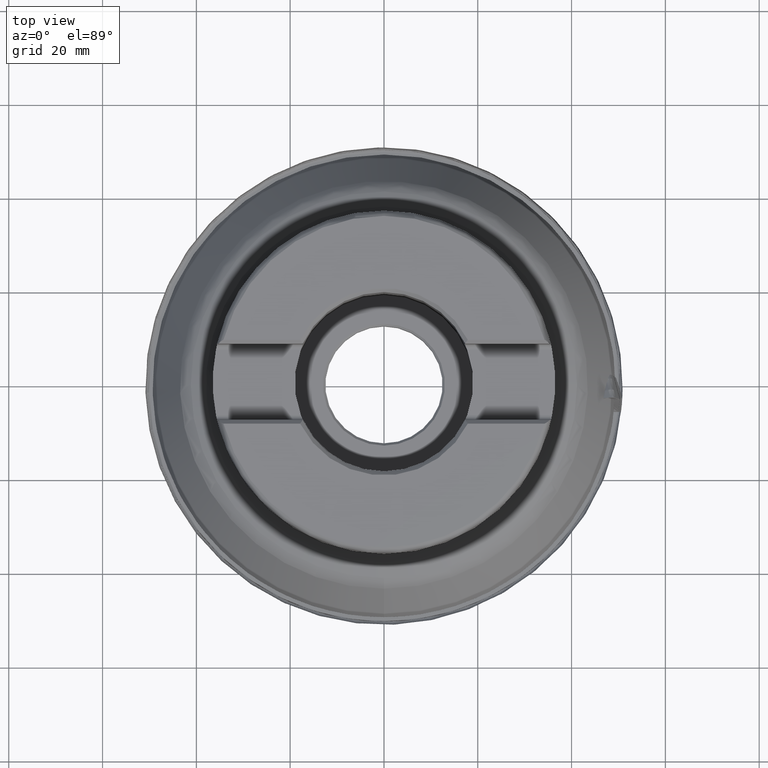
[diagram: clean part render]
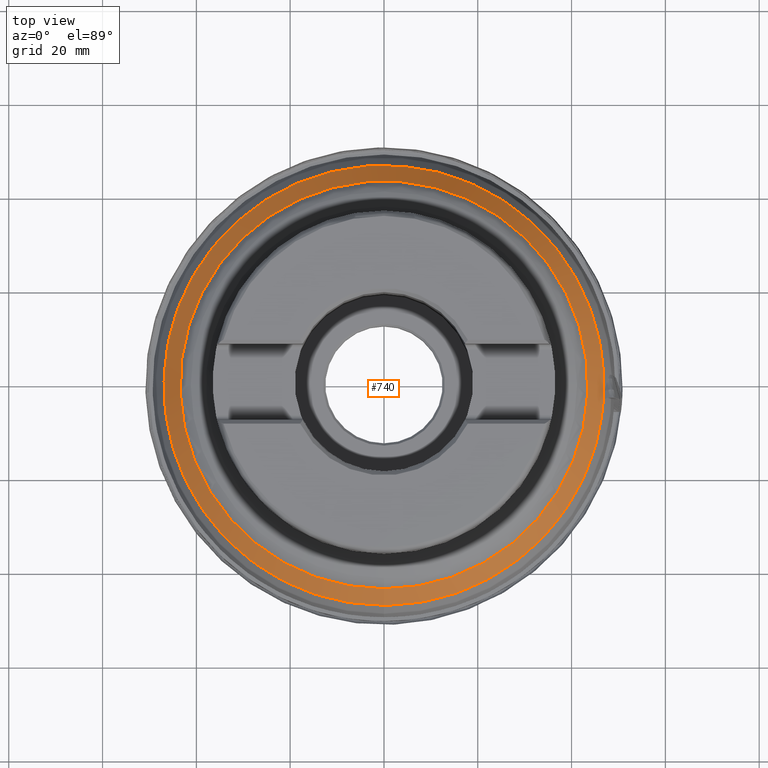
[diagram: same view with one face highlighted and labeled with its STEP entity id]
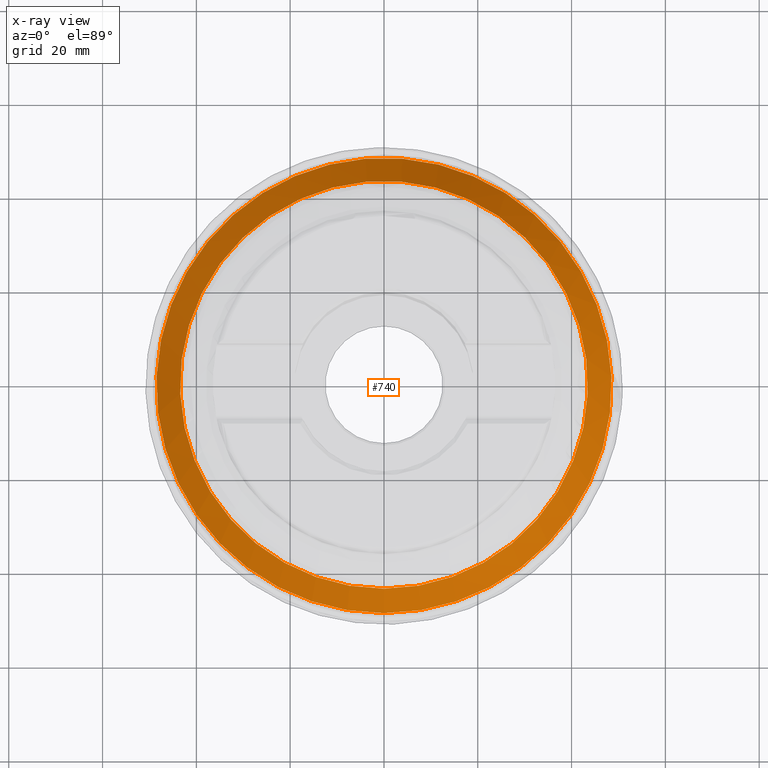
[diagram: x-ray of the same camera — body ghosted, the highlighted face saturated]
A machine part, top view. The second image highlights one B-rep face of the part: STEP entity #740.
The next image is the same camera in x-ray: the body ghosted, the highlighted face saturated — about 0% of this face is hidden behind the body in this view.
In plain terms, the highlighted conical surface has half-angle 30 deg.
Its self-contained STEP definition (entity closure, byte-faithful):
#404=CONICAL_SURFACE('',#4623,48.6608931922002,30.);
#440=FACE_BOUND('',#1329,.T.);
#441=FACE_BOUND('',#1330,.T.);
#589=CIRCLE('',#4621,43.4731924327825);
#590=CIRCLE('',#4622,48.5292406946128);
#740=ADVANCED_FACE('',(#440,#441),#404,.T.);
#1329=EDGE_LOOP('',(#1818));
#1330=EDGE_LOOP('',(#1819));
#1818=ORIENTED_EDGE('',*,*,#3509,.T.);
#1819=ORIENTED_EDGE('',*,*,#3510,.T.);
#3101=VERTEX_POINT('',#5832);
#3102=VERTEX_POINT('',#5834);
#3509=EDGE_CURVE('',#3101,#3101,#589,.T.);
#3510=EDGE_CURVE('',#3102,#3102,#590,.T.);
#4621=AXIS2_PLACEMENT_3D('',#5831,#4897,#4898);
#4622=AXIS2_PLACEMENT_3D('',#5833,#4899,#4900);
#4623=AXIS2_PLACEMENT_3D('',#5835,#4901,#4902);
#4897=DIRECTION('',(0.,-1.17145536458252E-15,-1.));
#4898=DIRECTION('',(0.,-1.,1.19709874906864E-15));
#4899=DIRECTION('',(0.,1.17145536458252E-15,1.));
#4900=DIRECTION('',(0.,-1.,1.17961612190626E-15));
#4901=DIRECTION('',(0.,-1.17145536458252E-15,-1.));
#4902=DIRECTION('',(0.,1.,-1.28577849920557E-15));
#5831=CARTESIAN_POINT('',(0.,2.49348506699843E-14,21.2853612897752));
#5832=CARTESIAN_POINT('',(0.,-43.4731924327825,21.2853612897752));
#5833=CARTESIAN_POINT('',(0.,1.46760265627005E-14,12.5280288147647));
#5834=CARTESIAN_POINT('',(0.,-48.5292406946128,12.5280288147648));
#5835=CARTESIAN_POINT('',(0.,1.44089009843651E-14,12.3));